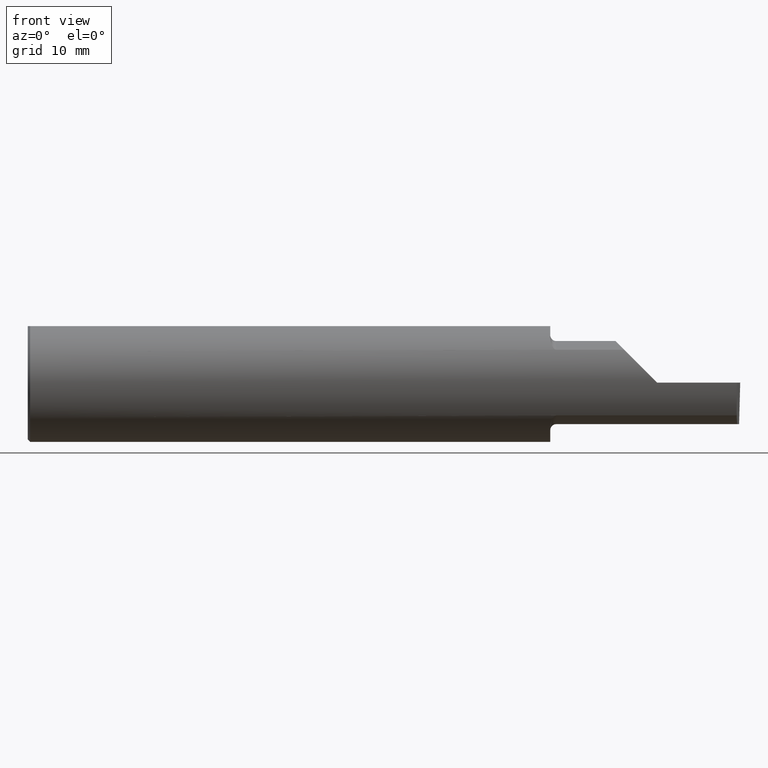
[diagram: clean part render]
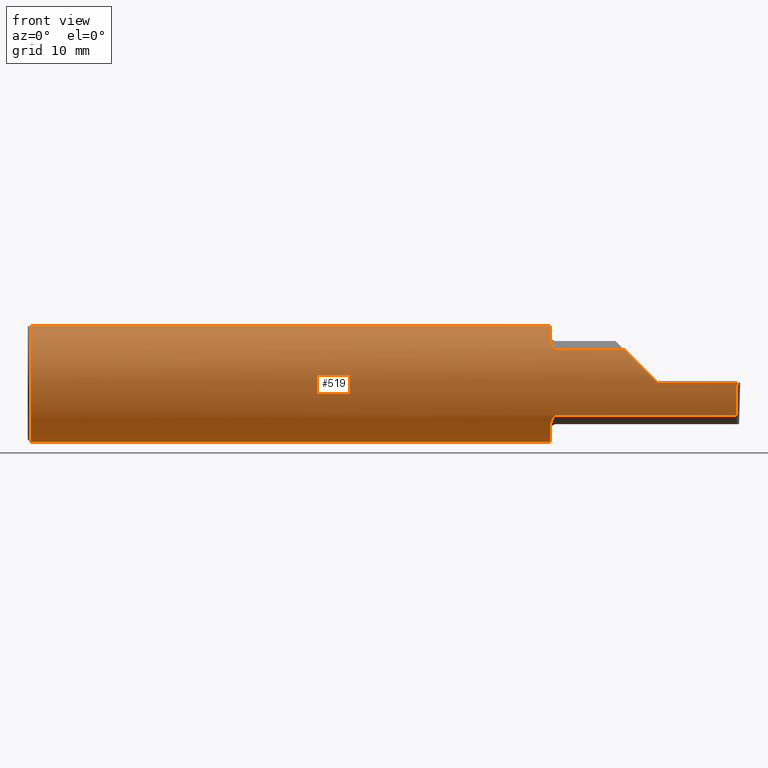
[diagram: same view with one face highlighted and labeled with its STEP entity id]
A machine part, front view. The second image highlights one B-rep face of the part: STEP entity #519.
In plain terms, the highlighted cylindrical surface (partial cylindrical patch) has radius 6.3462 mm, axis along (-1, -0, -0).
Its self-contained STEP definition (entity closure, byte-faithful):
#16 = DIRECTION ( 'NONE',  ( 1.000000000000000000, 0.000000000000000000, 0.000000000000000000 ) ) ;
#19 = DIRECTION ( 'NONE',  ( -1.000000000000000000, -0.000000000000000000, -0.000000000000000000 ) ) ;
#20 = CARTESIAN_POINT ( 'NONE',  ( 2.511704467739031887, -0.2080850024789288877, 0.1382955322609669413 ) ) ;
#24 = ORIENTED_EDGE ( 'NONE', *, *, #229, .F. ) ;
#46 = EDGE_CURVE ( 'NONE', #448, #178, #739, .T. ) ;
#51 = VECTOR ( 'NONE', #525, 39.37007874015748143 ) ;
#54 = VERTEX_POINT ( 'NONE', #388 ) ;
#55 = FACE_OUTER_BOUND ( 'NONE', #600, .T. ) ;
#58 = VECTOR ( 'NONE', #221, 39.37007874015748143 ) ;
#66 = CARTESIAN_POINT ( 'NONE',  ( 2.200000000000000178, 0.07650098038587520299, 0.2378499999999998671 ) ) ;
#68 = B_SPLINE_CURVE_WITH_KNOTS ( 'NONE', 3,
 ( #534, #74, #391, #203, #396, #348, #767, #783, #334, #142, #529, #455, #86, #588 ),
 .UNSPECIFIED., .F., .F.,
 ( 4, 2, 2, 2, 2, 2, 4 ),
 ( 0.0003834465838148164922, 0.0008781406165086602222, 0.001372834649202503898, 0.001867528681896347791, 0.002114875698243273532, 0.002238549206416744208, 0.002362222714590215319 ),
 .UNSPECIFIED. ) ;
#71 = CARTESIAN_POINT ( 'NONE',  ( 0.009999999999999856226, 0.07650098038587520299, 0.2378499999999998671 ) ) ;
#74 = CARTESIAN_POINT ( 'NONE',  ( 2.199999999999999734, -0.1665641037263009272, 0.1863429692936361681 ) ) ;
#79 = CARTESIAN_POINT ( 'NONE',  ( 0.009999999999999856226, 0.000000000000000000, 0.000000000000000000 ) ) ;
#86 = CARTESIAN_POINT ( 'NONE',  ( 2.223329956043142097, -0.2080850024798589493, 0.1382955322595675884 ) ) ;
#96 = CARTESIAN_POINT ( 'NONE',  ( 2.985989829834099218, -0.2498499999999999888, 0.000000000000000000 ) ) ;
#102 = CARTESIAN_POINT ( 'NONE',  ( 2.208176740666625726, -0.1972027065478072771, -0.1535263573771914747 ) ) ;
#104 = VECTOR ( 'NONE', #251, 39.37007874015748143 ) ;
#107 = CARTESIAN_POINT ( 'NONE',  ( 2.214302603425052141, -0.2041009206016212441, -0.1441313430770040926 ) ) ;
#109 = CARTESIAN_POINT ( 'NONE',  ( 2.206147634408388569, -0.1932733126899460752, -0.1584637047788198805 ) ) ;
#142 = CARTESIAN_POINT ( 'NONE',  ( 2.217647060162628581, -0.2062109266231181848, 0.1410799729252291412 ) ) ;
#150 = VERTEX_POINT ( 'NONE', #462 ) ;
#153 = CARTESIAN_POINT ( 'NONE',  ( 2.200000000000000178, 0.000000000000000000, 0.000000000000000000 ) ) ;
#154 = CARTESIAN_POINT ( 'NONE',  ( 2.218863362722770294, -0.2068301641248770362, -0.1401678546132360537 ) ) ;
#161 = EDGE_CURVE ( 'NONE', #150, #54, #262, .T. ) ;
#178 = VERTEX_POINT ( 'NONE', #20 ) ;
#180 = AXIS2_PLACEMENT_3D ( 'NONE', #214, #341, #730 ) ;
#191 = CYLINDRICAL_SURFACE ( 'NONE', #683, 0.2498499999999999888 ) ;
#195 = VERTEX_POINT ( 'NONE', #283 ) ;
#203 = CARTESIAN_POINT ( 'NONE',  ( 2.201849548162864156, -0.1805300287242673496, 0.1728462070311780341 ) ) ;
#205 = CARTESIAN_POINT ( 'NONE',  ( 2.200000000000000178, -0.1616050818046604054, -0.1905487340154980447 ) ) ;
#214 = CARTESIAN_POINT ( 'NONE',  ( 0.009999999999999856226, 0.000000000000000000, 0.000000000000000000 ) ) ;
#215 = CARTESIAN_POINT ( 'NONE',  ( 2.200000000000000178, -0.07650098038587527238, 0.2378499999999998671 ) ) ;
#221 = DIRECTION ( 'NONE',  ( -1.000000000000000000, -0.000000000000000000, -0.000000000000000000 ) ) ;
#223 = CIRCLE ( 'NONE', #670, 0.2498499999999999888 ) ;
#224 = DIRECTION ( 'NONE',  ( 0.000000000000000000, 0.000000000000000000, -1.000000000000000000 ) ) ;
#229 = EDGE_CURVE ( 'NONE', #766, #596, #459, .T. ) ;
#240 = CARTESIAN_POINT ( 'NONE',  ( 2.212579853086618975, -0.2024300470081734638, -0.1464774911482685793 ) ) ;
#242 = EDGE_CURVE ( 'NONE', #54, #578, #223, .T. ) ;
#244 = EDGE_CURVE ( 'NONE', #642, #627, #292, .T. ) ;
#251 = DIRECTION ( 'NONE',  ( 1.000000000000000000, 0.000000000000000000, 0.000000000000000000 ) ) ;
#262 = CIRCLE ( 'NONE', #180, 0.2498499999999999888 ) ;
#276 = VERTEX_POINT ( 'NONE', #615 ) ;
#283 = CARTESIAN_POINT ( 'NONE',  ( 2.985032866776429650, -0.2080850024789289987, -0.1382955322609668025 ) ) ;
#284 = CARTESIAN_POINT ( 'NONE',  ( 2.225000000000000089, -0.2080850024789288599, -0.1382955322609668025 ) ) ;
#292 = CIRCLE ( 'NONE', #561, 0.2498499999999999888 ) ;
#314 = EDGE_CURVE ( 'NONE', #276, #448, #702, .T. ) ;
#328 = CARTESIAN_POINT ( 'NONE',  ( 2.511704467739031887, -0.2080850024789288877, 0.1382955322609669413 ) ) ;
#333 = CARTESIAN_POINT ( 'NONE',  ( 2.200000000000000178, -0.1616050818046604054, 0.1905487340154980447 ) ) ;
#334 = CARTESIAN_POINT ( 'NONE',  ( 2.214343523383979662, -0.2041337200786083050, 0.1440846171672512943 ) ) ;
#336 = DIRECTION ( 'NONE',  ( 1.000000000000000000, 0.000000000000000000, 0.000000000000000000 ) ) ;
#340 = EDGE_CURVE ( 'NONE', #596, #347, #68, .T. ) ;
#341 = DIRECTION ( 'NONE',  ( 1.000000000000000000, 0.000000000000000000, 0.000000000000000000 ) ) ;
#347 = VERTEX_POINT ( 'NONE', #583 ) ;
#348 = CARTESIAN_POINT ( 'NONE',  ( 2.206159563508734767, -0.1933019864360848439, 0.1584298865564832959 ) ) ;
#364 = CARTESIAN_POINT ( 'NONE',  ( 2.201385488563270432, -0.1808287530430326140, -0.1728790649396287904 ) ) ;
#365 = LINE ( 'NONE', #787, #58 ) ;
#366 = CARTESIAN_POINT ( 'NONE',  ( 2.200000000000000178, -0.1616050818046604054, -0.1905487340154980447 ) ) ;
#379 = CARTESIAN_POINT ( 'NONE',  ( 2.650000000000000355, -0.2498499999999999610, 4.286263797015729199E-17 ) ) ;
#386 = ORIENTED_EDGE ( 'NONE', *, *, #244, .F. ) ;
#388 = CARTESIAN_POINT ( 'NONE',  ( 0.009999999999999856226, 0.000000000000000000, -0.2498499999999999888 ) ) ;
#391 = CARTESIAN_POINT ( 'NONE',  ( 2.200367168219774072, -0.1713400252854603567, 0.1819601557798506408 ) ) ;
#396 = CARTESIAN_POINT ( 'NONE',  ( 2.202968662030529323, -0.1849684355203378150, 0.1680843977756268370 ) ) ;
#409 = AXIS2_PLACEMENT_3D ( 'NONE', #153, #411, #224 ) ;
#411 = DIRECTION ( 'NONE',  ( 1.000000000000000000, 0.000000000000000000, 0.000000000000000000 ) ) ;
#414 = ORIENTED_EDGE ( 'NONE', *, *, #314, .T. ) ;
#422 = EDGE_CURVE ( 'NONE', #195, #574, #538, .T. ) ;
#428 = DIRECTION ( 'NONE',  ( -1.000000000000000000, -0.000000000000000000, -0.000000000000000000 ) ) ;
#431 = CARTESIAN_POINT ( 'NONE',  ( 2.217611663768900065, -0.2061921161193829566, -0.1411075319999377797 ) ) ;
#434 = CARTESIAN_POINT ( 'NONE',  ( 2.985124127500504265, -0.2498499999999999610, -0.04956584089959700790 ) ) ;
#442 = EDGE_CURVE ( 'NONE', #627, #578, #365, .T. ) ;
#444 = DIRECTION ( 'NONE',  ( -1.000000000000000000, -0.000000000000000000, -0.000000000000000000 ) ) ;
#445 = ORIENTED_EDGE ( 'NONE', *, *, #46, .T. ) ;
#448 = VERTEX_POINT ( 'NONE', #679 ) ;
#449 = CARTESIAN_POINT ( 'NONE',  ( 0.000000000000000000, 0.000000000000000000, 0.000000000000000000 ) ) ;
#455 = CARTESIAN_POINT ( 'NONE',  ( 2.221718393013768722, -0.2077830475237241181, 0.1387513848711937059 ) ) ;
#459 = CIRCLE ( 'NONE', #409, 0.2498499999999999888 ) ;
#462 = CARTESIAN_POINT ( 'NONE',  ( 0.009999999999999856226, -0.07650098038587520299, 0.2378499999999998671 ) ) ;
#478 = LINE ( 'NONE', #590, #51 ) ;
#483 = EDGE_CURVE ( 'NONE', #195, #276, #718, .T. ) ;
#496 = ORIENTED_EDGE ( 'NONE', *, *, #483, .T. ) ;
#517 = ORIENTED_EDGE ( 'NONE', *, *, #161, .T. ) ;
#519 = ADVANCED_FACE ( 'NONE', ( #55 ), #191, .T. ) ;
#522 = ORIENTED_EDGE ( 'NONE', *, *, #774, .F. ) ;
#524 = CARTESIAN_POINT ( 'NONE',  ( 2.200000000000000178, 0.000000000000000000, 0.000000000000000000 ) ) ;
#525 = DIRECTION ( 'NONE',  ( 1.000000000000000000, 0.000000000000000000, 0.000000000000000000 ) ) ;
#527 = ORIENTED_EDGE ( 'NONE', *, *, #810, .F. ) ;
#529 = CARTESIAN_POINT ( 'NONE',  ( 2.218876997637614590, -0.2068363917296599797, 0.1401586554522229744 ) ) ;
#534 = CARTESIAN_POINT ( 'NONE',  ( 2.200000000000000178, -0.1616050818046604054, 0.1905487340154980447 ) ) ;
#538 = LINE ( 'NONE', #793, #715 ) ;
#551 = EDGE_CURVE ( 'NONE', #150, #766, #572, .T. ) ;
#561 = AXIS2_PLACEMENT_3D ( 'NONE', #524, #16, #736 ) ;
#569 = ORIENTED_EDGE ( 'NONE', *, *, #340, .F. ) ;
#572 = LINE ( 'NONE', #580, #104 ) ;
#574 = VERTEX_POINT ( 'NONE', #645 ) ;
#578 = VERTEX_POINT ( 'NONE', #71 ) ;
#580 = CARTESIAN_POINT ( 'NONE',  ( 0.000000000000000000, -0.07650098038587520299, 0.2378499999999998671 ) ) ;
#583 = CARTESIAN_POINT ( 'NONE',  ( 2.225000000000000089, -0.2080850024789289987, 0.1382955322609667470 ) ) ;
#588 = CARTESIAN_POINT ( 'NONE',  ( 2.225000000000000089, -0.2080850024789289987, 0.1382955322609667470 ) ) ;
#589 = DIRECTION ( 'NONE',  ( 0.000000000000000000, 0.000000000000000000, -1.000000000000000000 ) ) ;
#590 = CARTESIAN_POINT ( 'NONE',  ( 2.518342309999999529, -0.2080850024789289987, 0.1382955322609668025 ) ) ;
#596 = VERTEX_POINT ( 'NONE', #333 ) ;
#600 = EDGE_LOOP ( 'NONE', ( #726, #496, #414, #445, #522, #569, #24, #696, #517, #782, #709, #386, #527 ) ) ;
#613 = CARTESIAN_POINT ( 'NONE',  ( 2.200000000000000178, -0.1716188362992555339, -0.1820560320165480472 ) ) ;
#615 = CARTESIAN_POINT ( 'NONE',  ( 2.985989829834099218, -0.2498499999999999888, 0.000000000000000000 ) ) ;
#627 = VERTEX_POINT ( 'NONE', #66 ) ;
#638 = CARTESIAN_POINT ( 'NONE',  ( 4.499279347985562423E-32, -0.2498499999999999610, 3.673940397442054938E-16 ) ) ;
#642 = VERTEX_POINT ( 'NONE', #205 ) ;
#643 = B_SPLINE_CURVE_WITH_KNOTS ( 'NONE', 3,
 ( #284, #785, #725, #154, #431, #107, #240, #102, #109, #364, #613, #366 ),
 .UNSPECIFIED., .F., .F.,
 ( 4, 2, 2, 2, 2, 4 ),
 ( 1.964491429042083594E-07, 0.0001260981470478305614, 0.0002519998449527569430, 0.0005038032407626228792, 0.001007410032382354426, 0.002014623615621823158 ),
 .UNSPECIFIED. ) ;
#645 = CARTESIAN_POINT ( 'NONE',  ( 2.225000000000000089, -0.2080850024789288599, -0.1382955322609668025 ) ) ;
#670 = AXIS2_PLACEMENT_3D ( 'NONE', #79, #336, #589 ) ;
#679 = CARTESIAN_POINT ( 'NONE',  ( 2.650000000000000355, -0.2498499999999999610, 4.286263797015729199E-17 ) ) ;
#683 = AXIS2_PLACEMENT_3D ( 'NONE', #449, #444, #705 ) ;
#691 = CARTESIAN_POINT ( 'NONE',  ( 2.984795792828450089, -0.2355204011147991883, -0.09701513151466764628 ) ) ;
#694 = CARTESIAN_POINT ( 'NONE',  ( 2.552984868485331571, -0.2355204011147991605, 0.09701513151466779894 ) ) ;
#696 = ORIENTED_EDGE ( 'NONE', *, *, #551, .F. ) ;
#702 = LINE ( 'NONE', #638, #713 ) ;
#705 = DIRECTION ( 'NONE',  ( 0.000000000000000000, 0.000000000000000000, 1.000000000000000000 ) ) ;
#709 = ORIENTED_EDGE ( 'NONE', *, *, #442, .F. ) ;
#713 = VECTOR ( 'NONE', #19, 39.37007874015748143 ) ;
#715 = VECTOR ( 'NONE', #428, 39.37007874015748143 ) ;
#718 =( BOUNDED_CURVE ( )  B_SPLINE_CURVE ( 3, ( #805, #691, #434, #96 ),
 .UNSPECIFIED., .F., .F. ) 
 B_SPLINE_CURVE_WITH_KNOTS ( ( 4, 4 ),
 ( 6.160376845738953833, 6.746954780470612256 ),
 .UNSPECIFIED. ) 
 CURVE ( )  GEOMETRIC_REPRESENTATION_ITEM ( )  RATIONAL_B_SPLINE_CURVE ( ( 1.000000000000000000, 0.9715321379117538569, 0.9715321379117538569, 1.000000000000000000 ) ) 
 REPRESENTATION_ITEM ( '' )  );
#725 = CARTESIAN_POINT ( 'NONE',  ( 2.221700027347579098, -0.2077785947292768165, -0.1387580622202825853 ) ) ;
#726 = ORIENTED_EDGE ( 'NONE', *, *, #422, .F. ) ;
#730 = DIRECTION ( 'NONE',  ( 0.000000000000000000, 0.000000000000000000, -1.000000000000000000 ) ) ;
#736 = DIRECTION ( 'NONE',  ( 0.000000000000000000, 0.000000000000000000, -1.000000000000000000 ) ) ;
#739 =( BOUNDED_CURVE ( )  B_SPLINE_CURVE ( 3, ( #379, #753, #694, #328 ),
 .UNSPECIFIED., .F., .F. ) 
 B_SPLINE_CURVE_WITH_KNOTS ( ( 4, 4 ),
 ( 4.712388980384689674, 5.298966915116348986 ),
 .UNSPECIFIED. ) 
 CURVE ( )  GEOMETRIC_REPRESENTATION_ITEM ( )  RATIONAL_B_SPLINE_CURVE ( ( 1.000000000000000000, 0.9715321379117536349, 0.9715321379117536349, 1.000000000000000000 ) ) 
 REPRESENTATION_ITEM ( '' )  );
#753 = CARTESIAN_POINT ( 'NONE',  ( 2.600434159100402987, -0.2498499999999999610, 0.04956584089959713973 ) ) ;
#766 = VERTEX_POINT ( 'NONE', #215 ) ;
#767 = CARTESIAN_POINT ( 'NONE',  ( 2.208182335268384033, -0.1972192205116130859, 0.1535061413537210928 ) ) ;
#774 = EDGE_CURVE ( 'NONE', #347, #178, #478, .T. ) ;
#782 = ORIENTED_EDGE ( 'NONE', *, *, #242, .T. ) ;
#783 = CARTESIAN_POINT ( 'NONE',  ( 2.212616400345756240, -0.2024684335577102146, 0.1464246884265639481 ) ) ;
#785 = CARTESIAN_POINT ( 'NONE',  ( 2.223318040126429640, -0.2080850024789291097, -0.1382955322609667193 ) ) ;
#787 = CARTESIAN_POINT ( 'NONE',  ( 0.000000000000000000, 0.07650098038587520299, 0.2378499999999998671 ) ) ;
#793 = CARTESIAN_POINT ( 'NONE',  ( 2.518342309999999529, -0.2080850024789289987, -0.1382955322609668025 ) ) ;
#805 = CARTESIAN_POINT ( 'NONE',  ( 2.985032866776429650, -0.2080850024789289987, -0.1382955322609668025 ) ) ;
#810 = EDGE_CURVE ( 'NONE', #574, #642, #643, .T. ) ;